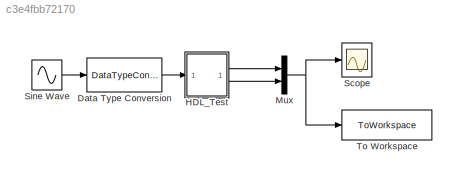
MODEL slx_c3e4fbb72170
KIND model
CONFIG AbsTol = auto
CONFIG EnableMultiTasking = off
CONFIG FixedStep = auto
CONFIG MaxStep = auto
CONFIG MinStep = auto
CONFIG RelTol = 1e-3
CONFIG SampleTimeConstraint = Unconstrained
CONFIG SolverName = VariableStepAuto
CONFIG StartTime = 0.0
CONFIG StopTime = 10.0
BLOCK [DataTypeConversion] Data Type Conversion
  OutDataTypeStr = fixdt(1,16,14)
  RndMeth = Floor
  SaturateOnIntegerOverflow = off
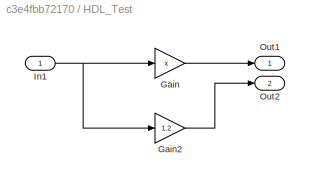
BLOCK [SubSystem] HDL_Test
BLOCK [Gain] HDL_Test/Gain
  Gain = x
  OutDataTypeStr = fixdt(1,32,25)
BLOCK [Gain] HDL_Test/Gain2
  Gain = 1.2
  OutDataTypeStr = fixdt(1,32,25)
BLOCK [Inport] HDL_Test/In1
BLOCK [Outport] HDL_Test/Out1
BLOCK [Outport] HDL_Test/Out2
  Port = 2
BLOCK [Mux] Mux
  DisplayOption = bar
  Inputs = 2
BLOCK [Scope] Scope
  Floating = off
  NumInputPorts = 1
  ScopeSpecificationString = Simulink.scopes.TimeScopeBlockCfg('CurrentConfiguration', extmgr.ConfigurationSet(extmgr.Configuration('Core','General UI',true),extmgr.Configuration('Core','Source UI',true),extmgr.Configuration('Sources','WiredSimulink',true),extmgr.Configuration('Visuals','Time Domain',true,'SerializedDisplays',{struct('MinYLimReal','-8.71983','MaxYLimReal','8.74332','YLabelReal','','MinYLimMag','0.00000','MaxY...<+1374ch>
BLOCK [Sin] Sine Wave
  SampleTime = 0
BLOCK [ToWorkspace] To Workspace
  FixptAsFi = on
  MaxDataPoints = inf
  SampleTime = -1
  SaveFormat = Timeseries
  VariableName = simout
LINE Data Type Conversion:1 -> HDL_Test:1
LINE HDL_Test/Gain2:1 -> HDL_Test/Out2:1
LINE HDL_Test/Gain:1 -> HDL_Test/Out1:1
NET HDL_Test/In1:1 -> HDL_Test/Gain2:1, HDL_Test/Gain:1
LINE HDL_Test:1 -> Mux:1
LINE HDL_Test:2 -> Mux:2
NET Mux:1 -> Scope:1, To Workspace:1
LINE Sine Wave:1 -> Data Type Conversion:1
note: NET lines group one-source signal fan-out (src -> all destinations, sorted); 1:1 wires keep LINE
